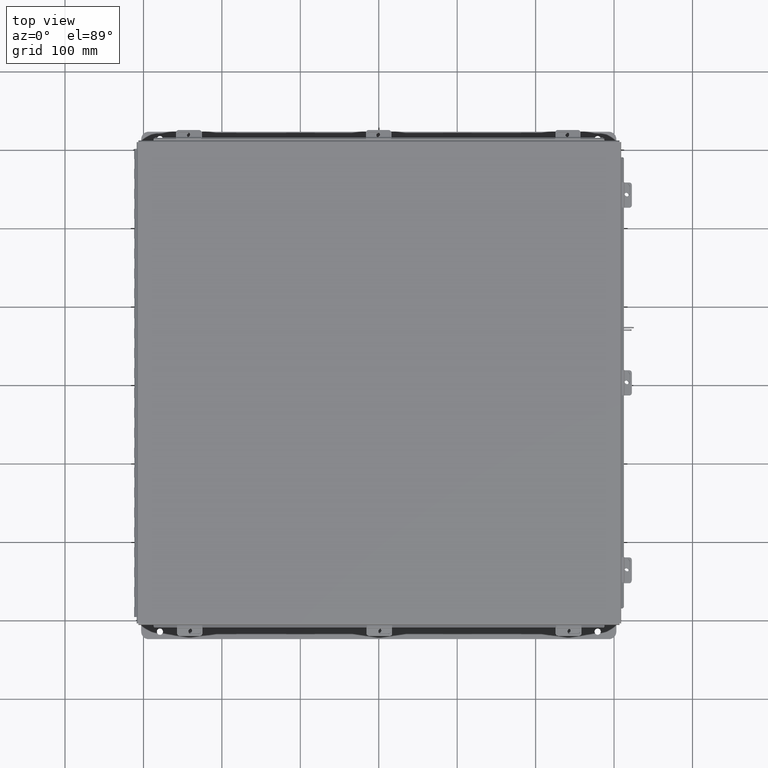
[diagram: clean part render]
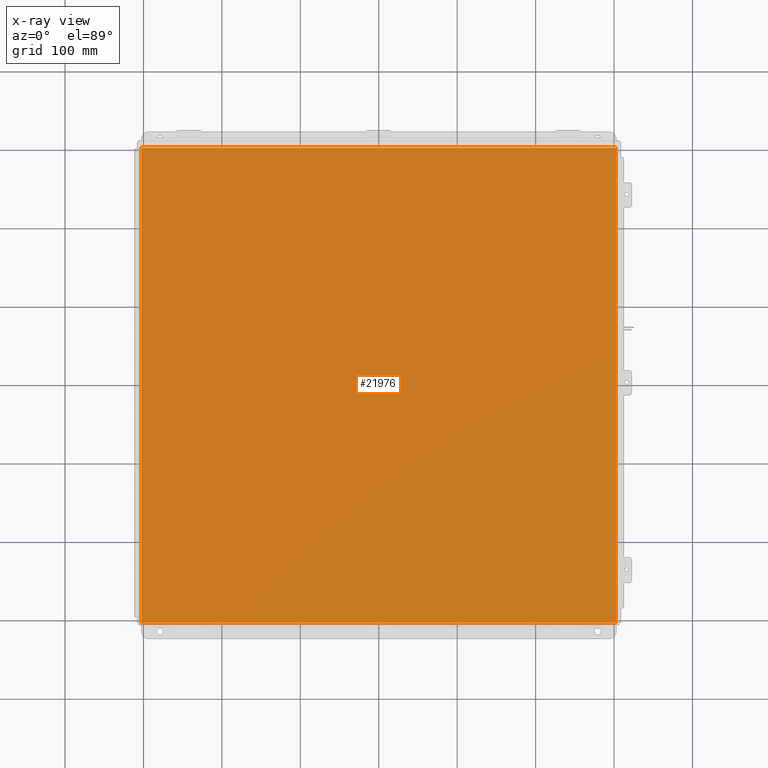
[diagram: x-ray — body ghosted, one internal face saturated and labeled with its STEP entity id]
A machine part, top view, then the same camera in x-ray: the body is ghosted and one INTERNAL B-rep face — a face not visible from any outside direction — is saturated and labeled: STEP entity #21976.
In plain terms, the highlighted planar face has unit normal (0, 0, -1).
Its self-contained STEP definition (entity closure, byte-faithful):
#353 = CARTESIAN_POINT ( 'NONE',  ( -12.00000000000000200, -11.92530000000000000, 0.0000000000000000000 ) ) ;
#1400 = FACE_OUTER_BOUND ( 'NONE', #16615, .T. ) ;
#2219 = LINE ( 'NONE', #353, #22095 ) ;
#2713 = DIRECTION ( 'NONE',  ( -0.0000000000000000000, -1.000000000000000000, -0.0000000000000000000 ) ) ;
#2932 = DIRECTION ( 'NONE',  ( -1.000000000000000000, 0.0000000000000000000, -0.0000000000000000000 ) ) ;
#4280 = CARTESIAN_POINT ( 'NONE',  ( -11.91230000000000000, -11.92529999999999800, 5.122214988120493500E-017 ) ) ;
#5637 = VECTOR ( 'NONE', #15580, 39.37007874015748100 ) ;
#6851 = AXIS2_PLACEMENT_3D ( 'NONE', #20176, #14449, #2932 ) ;
#7342 = ORIENTED_EDGE ( 'NONE', *, *, #16475, .F. ) ;
#8386 = VECTOR ( 'NONE', #2713, 39.37007874015748100 ) ;
#8928 = LINE ( 'NONE', #24685, #23659 ) ;
#10068 = VERTEX_POINT ( 'NONE', #15215 ) ;
#10396 = CARTESIAN_POINT ( 'NONE',  ( 11.91230000000000000, 11.92530000000000000, 5.122214988120493500E-017 ) ) ;
#11463 = CARTESIAN_POINT ( 'NONE',  ( 11.91230000000000000, -11.92530000000000000, 5.122214988120493500E-017 ) ) ;
#11812 = CARTESIAN_POINT ( 'NONE',  ( -11.91230000000000000, -11.92530000000000000, 5.122214988120493500E-017 ) ) ;
#12914 = VERTEX_POINT ( 'NONE', #24598 ) ;
#13182 = EDGE_CURVE ( 'NONE', #21776, #24769, #2219, .T. ) ;
#14449 = DIRECTION ( 'NONE',  ( 0.0000000000000000000, 0.0000000000000000000, -1.000000000000000000 ) ) ;
#14688 = LINE ( 'NONE', #10396, #8386 ) ;
#15108 = DIRECTION ( 'NONE',  ( -1.000000000000000000, -0.0000000000000000000, -0.0000000000000000000 ) ) ;
#15215 = CARTESIAN_POINT ( 'NONE',  ( -11.91230000000000000, 11.92530000000000000, 5.122214988120493500E-017 ) ) ;
#15324 = ORIENTED_EDGE ( 'NONE', *, *, #17946, .T. ) ;
#15445 = ORIENTED_EDGE ( 'NONE', *, *, #16842, .F. ) ;
#15580 = DIRECTION ( 'NONE',  ( -0.0000000000000000000, 1.000000000000000000, -0.0000000000000000000 ) ) ;
#16475 = EDGE_CURVE ( 'NONE', #12914, #24769, #14688, .T. ) ;
#16615 = EDGE_LOOP ( 'NONE', ( #7342, #15324, #15445, #24601 ) ) ;
#16842 = EDGE_CURVE ( 'NONE', #21776, #10068, #21018, .T. ) ;
#17946 = EDGE_CURVE ( 'NONE', #12914, #10068, #8928, .T. ) ;
#19623 = DIRECTION ( 'NONE',  ( 1.000000000000000000, 0.0000000000000000000, 0.0000000000000000000 ) ) ;
#20176 = CARTESIAN_POINT ( 'NONE',  ( 0.0000000000000000000, 0.0000000000000000000, 0.0000000000000000000 ) ) ;
#21018 = LINE ( 'NONE', #11812, #5637 ) ;
#21776 = VERTEX_POINT ( 'NONE', #4280 ) ;
#21976 = ADVANCED_FACE ( 'NONE', ( #1400 ), #24046, .F. ) ;
#22095 = VECTOR ( 'NONE', #19623, 39.37007874015748100 ) ;
#23659 = VECTOR ( 'NONE', #15108, 39.37007874015748100 ) ;
#24046 = PLANE ( 'NONE',  #6851 ) ;
#24598 = CARTESIAN_POINT ( 'NONE',  ( 11.91230000000000000, 11.92529999999999800, 5.122214988120493500E-017 ) ) ;
#24601 = ORIENTED_EDGE ( 'NONE', *, *, #13182, .T. ) ;
#24685 = CARTESIAN_POINT ( 'NONE',  ( -12.00000000000000200, 11.92530000000000000, 0.0000000000000000000 ) ) ;
#24769 = VERTEX_POINT ( 'NONE', #11463 ) ;